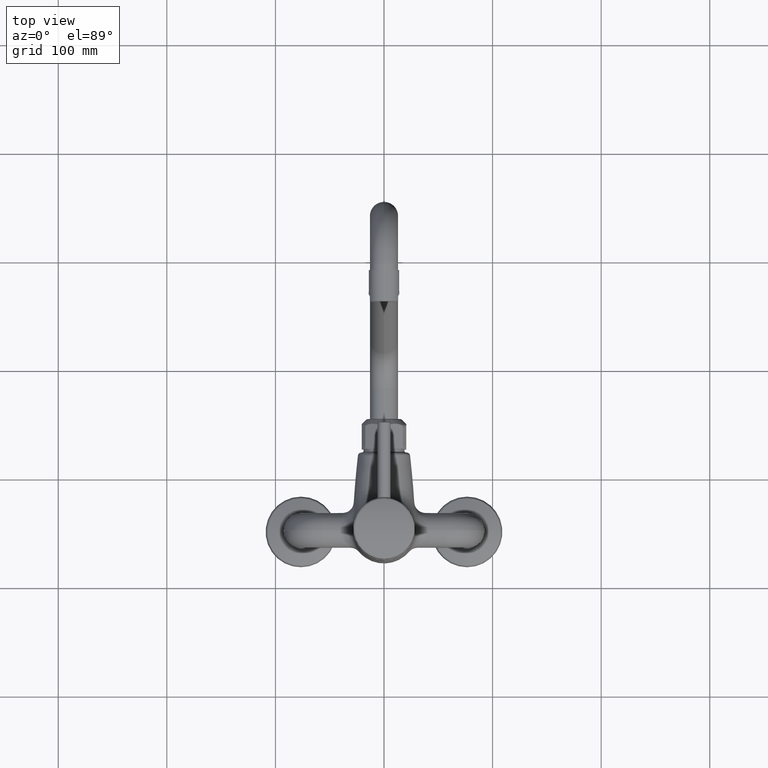
[diagram: clean part render]
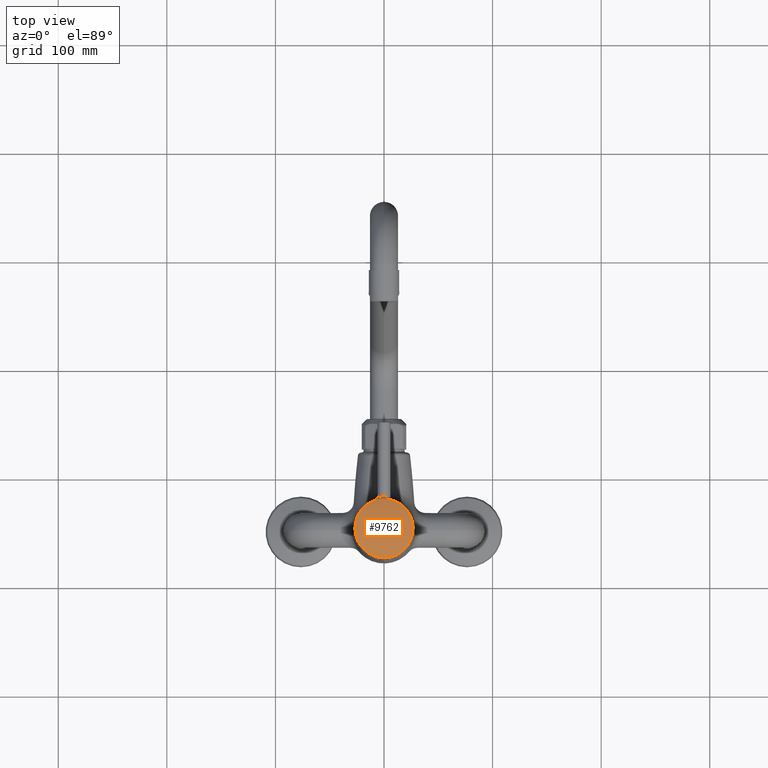
[diagram: same view with one face highlighted and labeled with its STEP entity id]
A machine part, top view. The second image highlights one B-rep face of the part: STEP entity #9762.
In plain terms, the highlighted cylindrical surface (partial cylindrical patch) has radius 80 mm, axis along (-1, 0, 0).
Its self-contained STEP definition (entity closure, byte-faithful):
#3440=CARTESIAN_POINT('',(-2.589106316883E-13,2.474374490246E1,
1.125569914960E2));
#3441=CARTESIAN_POINT('',(6.543998578127E-1,2.474375085782E1,1.125569946958E2));
#3442=CARTESIAN_POINT('',(1.962923041446E0,2.479251476956E1,1.125746949402E2));
#3443=CARTESIAN_POINT('',(3.930690133040E0,2.501438881511E1,1.126547488307E2));
#3444=CARTESIAN_POINT('',(5.886005084363E0,2.538603645903E1,1.127871881151E2));
#3445=CARTESIAN_POINT('',(7.822016148720E0,2.590840882190E1,1.129698617727E2));
#3446=CARTESIAN_POINT('',(9.732057641756E0,2.658382887515E1,1.132000718596E2));
#3447=CARTESIAN_POINT('',(1.160428090875E1,2.741282615012E1,1.134734760810E2));
#3448=CARTESIAN_POINT('',(1.342581869972E1,2.839458793247E1,1.137843539383E2));
#3449=CARTESIAN_POINT('',(1.518272131458E1,2.952676493804E1,1.141256805675E2));
#3450=CARTESIAN_POINT('',(1.685919866070E1,3.080357338047E1,1.144888107785E2));
#3451=CARTESIAN_POINT('',(1.843961818484E1,3.221688903932E1,1.148641850128E2));
#3452=CARTESIAN_POINT('',(1.990910093559E1,3.375546955052E1,1.152415285136E2));
#3453=CARTESIAN_POINT('',(2.125461020125E1,3.540631096270E1,1.156106387907E2));
#3454=CARTESIAN_POINT('',(2.246529758241E1,3.715474051530E1,1.159617669667E2));
#3455=CARTESIAN_POINT('',(2.353321851217E1,3.898587919964E1,1.162862035877E2));
#3456=CARTESIAN_POINT('',(2.445262749786E1,4.088498051821E1,1.165764713088E2));
#3457=CARTESIAN_POINT('',(2.522055374052E1,4.283861843242E1,1.168265287077E2));
#3458=CARTESIAN_POINT('',(2.583500165673E1,4.483426425144E1,1.170316245824E2));
#3459=CARTESIAN_POINT('',(2.629582770130E1,4.686115084196E1,1.171882719919E2));
#3460=CARTESIAN_POINT('',(2.660275509050E1,4.890934250723E1,1.172940025514E2));
#3461=CARTESIAN_POINT('',(2.675629299814E1,5.097006669544E1,1.173472754432E2));
#3462=CARTESIAN_POINT('',(2.675646303881E1,5.303492860096E1,1.173473381573E2));
#3463=CARTESIAN_POINT('',(2.660328273713E1,5.509586531160E1,1.172941821780E2));
#3464=CARTESIAN_POINT('',(2.629661760355E1,5.714445365213E1,1.171885451412E2));
#3465=CARTESIAN_POINT('',(2.583598945952E1,5.917188895229E1,1.170319561147E2));
#3466=CARTESIAN_POINT('',(2.522162404688E1,6.116814424929E1,1.168268819967E2));
#3467=CARTESIAN_POINT('',(2.445370649247E1,6.312236816420E1,1.165768174798E2));
#3468=CARTESIAN_POINT('',(2.353425438834E1,6.502198990642E1,1.162865229487E2));
#3469=CARTESIAN_POINT('',(2.246625429315E1,6.685355013461E1,1.159620517978E2));
#3470=CARTESIAN_POINT('',(2.125548472564E1,6.860232837800E1,1.156108836201E2));
#3471=CARTESIAN_POINT('',(1.990986873551E1,7.025344869527E1,1.152417329692E2));
#3472=CARTESIAN_POINT('',(1.844026145741E1,7.179228477015E1,1.148643420771E2));
#3473=CARTESIAN_POINT('',(1.685969811770E1,7.320580131528E1,1.144889239858E2));
#3474=CARTESIAN_POINT('',(1.518312518933E1,7.448273802251E1,1.141257630887E2));
#3475=CARTESIAN_POINT('',(1.342617988181E1,7.561498551803E1,1.137844188291E2));
#3476=CARTESIAN_POINT('',(1.160466022106E1,7.659676582396E1,1.134735378756E2));
#3477=CARTESIAN_POINT('',(9.732456973225E0,7.742580158523E1,1.132001231144E2));
#3478=CARTESIAN_POINT('',(7.822395089385E0,7.810125166546E1,1.129699041033E2));
#3479=CARTESIAN_POINT('',(5.886432786293E0,7.862364872041E1,1.127872226890E2));
#3480=CARTESIAN_POINT('',(3.931057606620E0,7.899534401353E1,1.126547669098E2));
#3481=CARTESIAN_POINT('',(1.963064580831E0,7.921726348456E1,1.125746965458E2));
#3482=CARTESIAN_POINT('',(6.544469351505E-1,7.926603110408E1,1.125569953097E2));
#3483=CARTESIAN_POINT('',(2.650938826521E-13,7.926603806290E1,
1.125569914956E2));
#3485=CARTESIAN_POINT('',(2.650938826521E-13,7.926603806290E1,
1.125569914956E2));
#3486=CARTESIAN_POINT('',(-6.544060611960E-1,7.926603211805E1,
1.125569946899E2));
#3487=CARTESIAN_POINT('',(-1.962938818632E0,7.921726728737E1,1.125746952717E2));
#3488=CARTESIAN_POINT('',(-3.930711994406E0,7.899539089075E1,1.126547500005E2));
#3489=CARTESIAN_POINT('',(-5.886024083642E0,7.862374223832E1,1.127871896257E2));
#3490=CARTESIAN_POINT('',(-7.822039323723E0,7.810136683564E1,1.129698643025E2));
#3491=CARTESIAN_POINT('',(-9.732082930891E0,7.742594442635E1,1.132000751085E2));
#3492=CARTESIAN_POINT('',(-1.160430597818E1,7.659694424245E1,1.134734801510E2));
#3493=CARTESIAN_POINT('',(-1.342584328216E1,7.561518080255E1,1.137843583473E2));
#3494=CARTESIAN_POINT('',(-1.518274658653E1,7.448300028614E1,1.141256857765E2));
#3495=CARTESIAN_POINT('',(-1.685922206371E1,7.320619011547E1,1.144888161409E2));
#3496=CARTESIAN_POINT('',(-1.843964096550E1,7.179287211524E1,1.148641905919E2));
#3497=CARTESIAN_POINT('',(-1.990912124357E1,7.025429006889E1,1.152415339993E2));
#3498=CARTESIAN_POINT('',(-2.125463013848E1,6.860344593497E1,1.156106443302E2));
#3499=CARTESIAN_POINT('',(-2.246531439998E1,6.685501557084E1,1.159617720580E2));
#3500=CARTESIAN_POINT('',(-2.353323467569E1,6.502387400813E1,1.162862085104E2));
#3501=CARTESIAN_POINT('',(-2.445264082621E1,6.312477174132E1,1.165764756309E2));
#3502=CARTESIAN_POINT('',(-2.522056537735E1,6.117113132600E1,1.168265325522E2));
#3503=CARTESIAN_POINT('',(-2.583501091522E1,5.917548485240E1,1.170316276318E2));
#3504=CARTESIAN_POINT('',(-2.629583369515E1,5.714859780454E1,1.171882742030E2));
#3505=CARTESIAN_POINT('',(-2.660275938914E1,5.510040665913E1,1.172940038527E2));
#3506=CARTESIAN_POINT('',(-2.675629353976E1,5.303968327890E1,1.173472758635E2));
#3507=CARTESIAN_POINT('',(-2.675646250072E1,5.097482208878E1,1.173473377350E2));
#3508=CARTESIAN_POINT('',(-2.660327860665E1,4.891388626447E1,1.172941809571E2));
#3509=CARTESIAN_POINT('',(-2.629661241031E1,4.686529891992E1,1.171885431741E2));
#3510=CARTESIAN_POINT('',(-2.583598135018E1,4.483786489578E1,1.170319534902E2));
#3511=CARTESIAN_POINT('',(-2.522161422798E1,4.284161026413E1,1.168268787038E2));
#3512=CARTESIAN_POINT('',(-2.445369496708E1,4.088738840285E1,1.165768137682E2));
#3513=CARTESIAN_POINT('',(-2.353424026160E1,3.898776695959E1,1.162865186336E2));
#3514=CARTESIAN_POINT('',(-2.246623957793E1,3.715620932333E1,1.159620473460E2));
#3515=CARTESIAN_POINT('',(-2.125546703980E1,3.540743148283E1,1.156108787129E2));
#3516=CARTESIAN_POINT('',(-1.990985065386E1,3.375631341770E1,1.152417280711E2));
#3517=CARTESIAN_POINT('',(-1.844024078323E1,3.221747846214E1,1.148643370308E2));
#3518=CARTESIAN_POINT('',(-1.685967701227E1,3.080396401024E1,1.144889191269E2));
#3519=CARTESIAN_POINT('',(-1.518310230579E1,2.952702895506E1,1.141257583941E2));
#3520=CARTESIAN_POINT('',(-1.342615793433E1,2.839478468113E1,1.137844148737E2));
#3521=CARTESIAN_POINT('',(-1.160463762290E1,2.741300581672E1,1.134735342102E2));
#3522=CARTESIAN_POINT('',(-9.732433785312E0,2.658397253588E1,1.132001201416E2));
#3523=CARTESIAN_POINT('',(-7.822373812737E0,2.590852455974E1,1.129699017699E2));
#3524=CARTESIAN_POINT('',(-5.886415465673E0,2.538613037283E1,1.127872213186E2));
#3525=CARTESIAN_POINT('',(-3.931036674520E0,2.501443580802E1,1.126547657819E2));
#3526=CARTESIAN_POINT('',(-1.963049235449E0,2.479251858544E1,1.125746962188E2));
#3527=CARTESIAN_POINT('',(-6.544408629297E-1,2.474375187403E1,
1.125569953169E2));
#3528=CARTESIAN_POINT('',(-2.589106316883E-13,2.474374490246E1,
1.125569914960E2));
#4395=VERTEX_POINT('',#3440);
#4396=VERTEX_POINT('',#3483);
#9752=CARTESIAN_POINT('',(3.39E1,5.200489148275E1,3.734509133168E1));
#9753=DIRECTION('',(-1.E0,0.E0,0.E0));
#9754=DIRECTION('',(0.E0,1.E0,0.E0));
#9755=AXIS2_PLACEMENT_3D('',#9752,#9753,#9754);
#9756=CYLINDRICAL_SURFACE('',#9755,8.E1);
#9758=ORIENTED_EDGE('',*,*,#9757,.F.);
#9759=ORIENTED_EDGE('',*,*,#9730,.F.);
#9760=EDGE_LOOP('',(#9758,#9759));
#9761=FACE_OUTER_BOUND('',#9760,.F.);
#3484=B_SPLINE_CURVE_WITH_KNOTS('',3,(#3440,#3441,#3442,#3443,#3444,#3445,#3446,
#3447,#3448,#3449,#3450,#3451,#3452,#3453,#3454,#3455,#3456,#3457,#3458,#3459,
#3460,#3461,#3462,#3463,#3464,#3465,#3466,#3467,#3468,#3469,#3470,#3471,#3472,
#3473,#3474,#3475,#3476,#3477,#3478,#3479,#3480,#3481,#3482,#3483),
.UNSPECIFIED.,.F.,.F.,(4,1,1,1,1,1,1,1,1,1,1,1,1,1,1,1,1,1,1,1,1,1,1,1,1,1,1,1,
1,1,1,1,1,1,1,1,1,1,1,1,1,4),(0.E0,2.439024390244E-2,4.878048780488E-2,
7.317073170732E-2,9.756097560976E-2,1.219512195122E-1,1.463414634146E-1,
1.707317073171E-1,1.951219512195E-1,2.195121951220E-1,2.439024390244E-1,
2.682926829268E-1,2.926829268293E-1,3.170731707317E-1,3.414634146341E-1,
3.658536585366E-1,3.902439024390E-1,4.146341463415E-1,4.390243902439E-1,
4.634146341463E-1,4.878048780488E-1,5.121951219512E-1,5.365853658537E-1,
5.609756097561E-1,5.853658536585E-1,6.097560975610E-1,6.341463414634E-1,
6.585365853659E-1,6.829268292683E-1,7.073170731707E-1,7.317073170732E-1,
7.560975609756E-1,7.804878048780E-1,8.048780487805E-1,8.292682926829E-1,
8.536585365854E-1,8.780487804878E-1,9.024390243902E-1,9.268292682927E-1,
9.512195121951E-1,9.756097560976E-1,1.E0),.UNSPECIFIED.);
#3529=B_SPLINE_CURVE_WITH_KNOTS('',3,(#3485,#3486,#3487,#3488,#3489,#3490,#3491,
#3492,#3493,#3494,#3495,#3496,#3497,#3498,#3499,#3500,#3501,#3502,#3503,#3504,
#3505,#3506,#3507,#3508,#3509,#3510,#3511,#3512,#3513,#3514,#3515,#3516,#3517,
#3518,#3519,#3520,#3521,#3522,#3523,#3524,#3525,#3526,#3527,#3528),
.UNSPECIFIED.,.F.,.F.,(4,1,1,1,1,1,1,1,1,1,1,1,1,1,1,1,1,1,1,1,1,1,1,1,1,1,1,1,
1,1,1,1,1,1,1,1,1,1,1,1,1,4),(0.E0,2.439024390244E-2,4.878048780488E-2,
7.317073170732E-2,9.756097560976E-2,1.219512195122E-1,1.463414634146E-1,
1.707317073171E-1,1.951219512195E-1,2.195121951220E-1,2.439024390244E-1,
2.682926829268E-1,2.926829268293E-1,3.170731707317E-1,3.414634146341E-1,
3.658536585366E-1,3.902439024390E-1,4.146341463415E-1,4.390243902439E-1,
4.634146341463E-1,4.878048780488E-1,5.121951219512E-1,5.365853658537E-1,
5.609756097561E-1,5.853658536585E-1,6.097560975610E-1,6.341463414634E-1,
6.585365853659E-1,6.829268292683E-1,7.073170731707E-1,7.317073170732E-1,
7.560975609756E-1,7.804878048780E-1,8.048780487805E-1,8.292682926829E-1,
8.536585365854E-1,8.780487804878E-1,9.024390243902E-1,9.268292682927E-1,
9.512195121951E-1,9.756097560976E-1,1.E0),.UNSPECIFIED.);
#9730=EDGE_CURVE('',#4396,#4395,#3529,.T.);
#9757=EDGE_CURVE('',#4395,#4396,#3484,.T.);
#9762=ADVANCED_FACE('',(#9761),#9756,.T.);